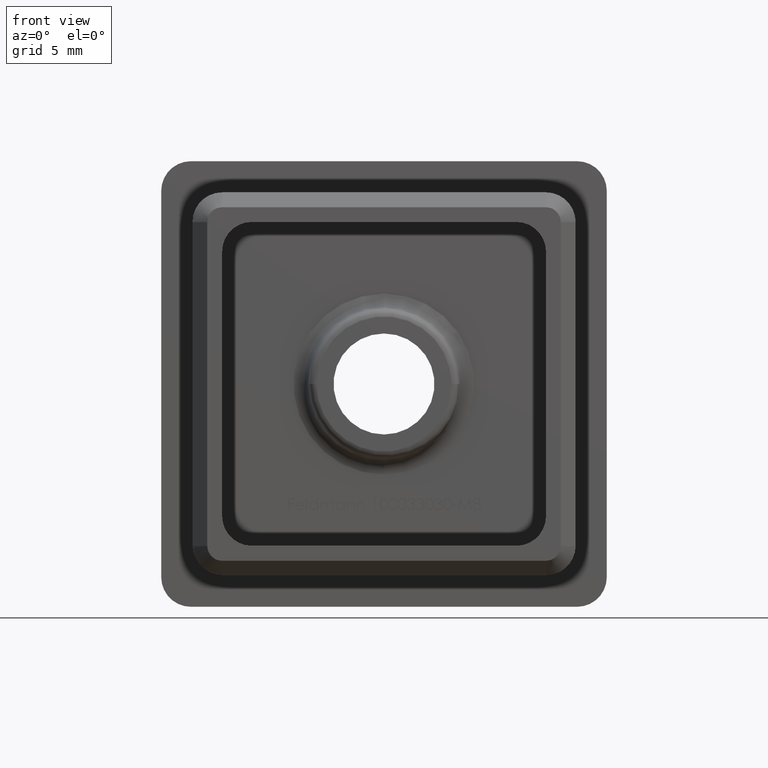
[diagram: clean part render]
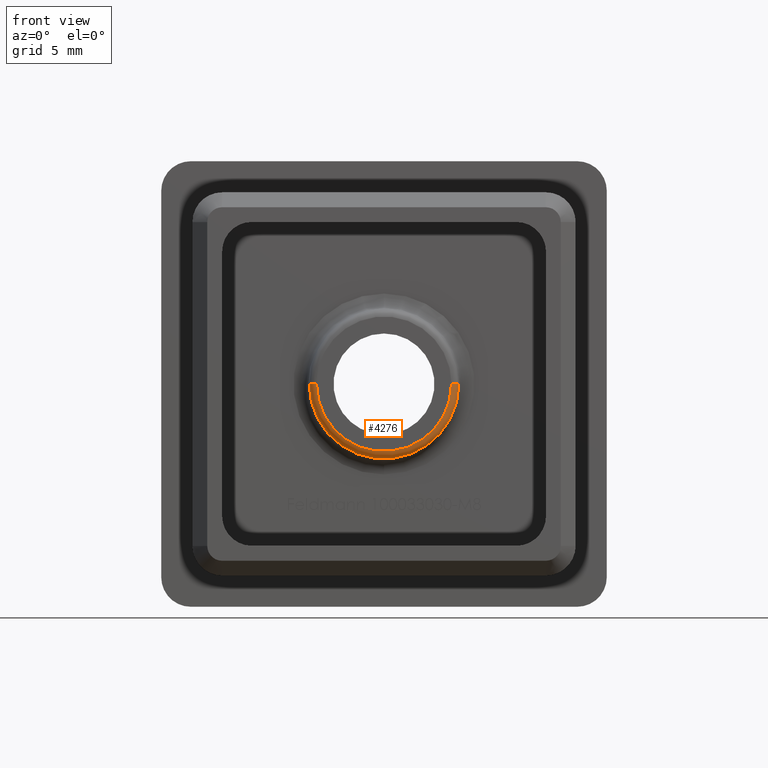
[diagram: same view with one face highlighted and labeled with its STEP entity id]
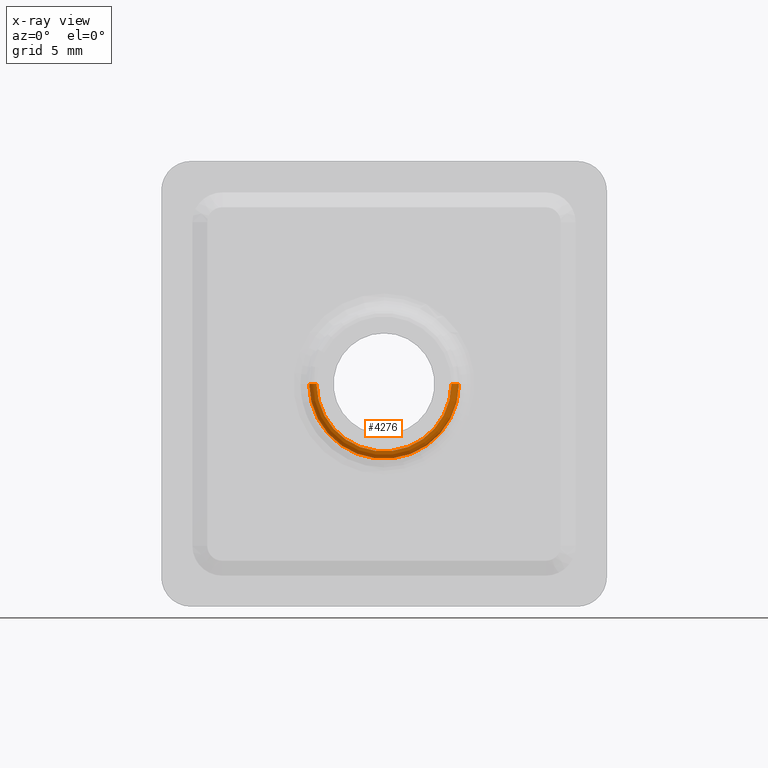
[diagram: x-ray of the same camera — body ghosted, the highlighted face saturated]
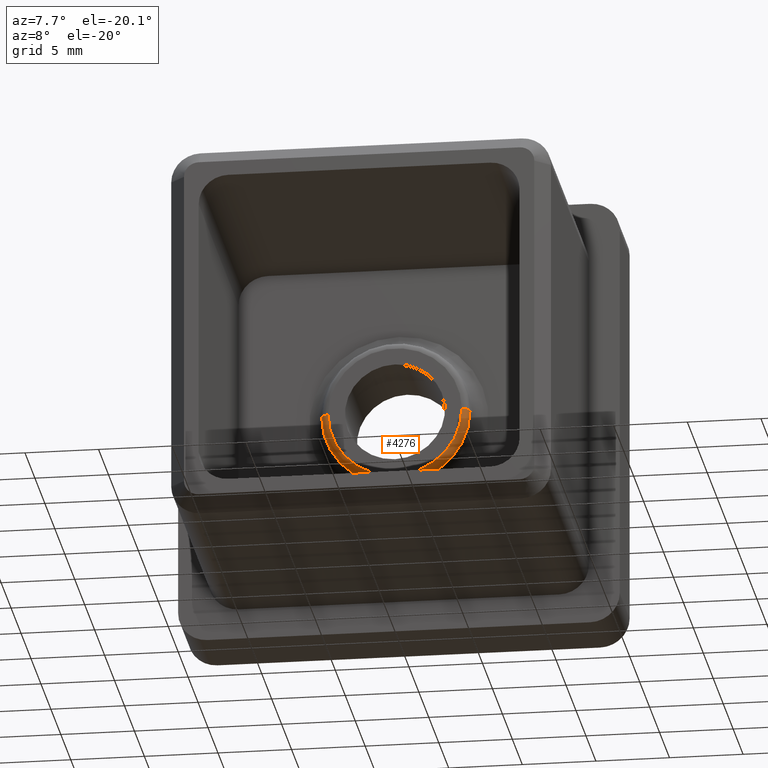
[diagram: same view with one face highlighted and labeled with its STEP entity id]
A machine part, front view. The second image highlights one B-rep face of the part: STEP entity #4276.
The next image is the same camera in x-ray: the body ghosted, the highlighted face saturated — about 0% of this face is hidden behind the body in this view.
A second angle (auxiliary view) of the same face is appended — the face is thin or edge-on in the first view.
In plain terms, the highlighted toroidal blend (fillet) surface has major radius 4.5418 mm and minor (blend) radius 0.5 mm.
Its self-contained STEP definition (entity closure, byte-faithful):
#95 = CARTESIAN_POINT ( 'NONE',  ( 4.541834412991284400, -2.000000000000000000, 5.867139638213479300E-016 ) ) ;
#1901 = AXIS2_PLACEMENT_3D ( 'NONE', #11966, #14946, #14818 ) ;
#2401 = ORIENTED_EDGE ( 'NONE', *, *, #16470, .F. ) ;
#2441 = CARTESIAN_POINT ( 'NONE',  ( 5.039931762037158000, -1.543577871373824000, 6.205925555203900700E-016 ) ) ;
#2449 = AXIS2_PLACEMENT_3D ( 'NONE', #16723, #9609, #6712 ) ;
#2656 = CARTESIAN_POINT ( 'NONE',  ( -4.541834412991284400, -2.000000000000000900, 0.0000000000000000000 ) ) ;
#2994 = DIRECTION ( 'NONE',  ( -1.000000000000000000, 0.0000000000000000000, 0.0000000000000000000 ) ) ;
#3300 = DIRECTION ( 'NONE',  ( -1.224646799147353500E-016, 1.000000000000000000, -0.0000000000000000000 ) ) ;
#3366 = DIRECTION ( 'NONE',  ( 1.000000000000000000, 1.290734347618150500E-016, 0.0000000000000000000 ) ) ;
#4201 = DIRECTION ( 'NONE',  ( -1.224646799147353500E-016, 1.000000000000000000, -0.0000000000000000000 ) ) ;
#4276 = ADVANCED_FACE ( 'NONE', ( #12718 ), #12287, .T. ) ;
#4571 = CARTESIAN_POINT ( 'NONE',  ( -5.039931762037158000, -1.543577871373825300, 0.0000000000000000000 ) ) ;
#5501 = EDGE_LOOP ( 'NONE', ( #6152, #16577, #16377, #2401 ) ) ;
#6152 = ORIENTED_EDGE ( 'NONE', *, *, #17541, .F. ) ;
#6671 = VERTEX_POINT ( 'NONE', #95 ) ;
#6712 = DIRECTION ( 'NONE',  ( -1.000000000000000000, -9.548583888345160900E-017, 0.0000000000000000000 ) ) ;
#7660 = EDGE_CURVE ( 'NONE', #10669, #7877, #14796, .T. ) ;
#7877 = VERTEX_POINT ( 'NONE', #4571 ) ;
#8774 = VERTEX_POINT ( 'NONE', #2441 ) ;
#9609 = DIRECTION ( 'NONE',  ( 1.224646799147353500E-016, -1.000000000000000000, 0.0000000000000000000 ) ) ;
#9774 = EDGE_CURVE ( 'NONE', #10669, #6671, #17197, .T. ) ;
#9802 = AXIS2_PLACEMENT_3D ( 'NONE', #16087, #3300, #3366 ) ;
#10002 = CARTESIAN_POINT ( 'NONE',  ( 1.836970198721030400E-016, -1.500000000000000400, 0.0000000000000000000 ) ) ;
#10499 = AXIS2_PLACEMENT_3D ( 'NONE', #10002, #4201, #18489 ) ;
#10669 = VERTEX_POINT ( 'NONE', #2656 ) ;
#11966 = CARTESIAN_POINT ( 'NONE',  ( 4.541834412991284400, -1.499999999999999800, 5.562142976127074500E-016 ) ) ;
#12287 = TOROIDAL_SURFACE ( 'NONE', #10499, 4.541834412991284400, 0.5000000000000000000 ) ;
#12718 = FACE_OUTER_BOUND ( 'NONE', #5501, .T. ) ;
#12810 = CIRCLE ( 'NONE', #1901, 0.4999999999999995600 ) ;
#12947 = CARTESIAN_POINT ( 'NONE',  ( -4.541834412991284400, -1.500000000000001100, 0.0000000000000000000 ) ) ;
#14796 = CIRCLE ( 'NONE', #16049, 0.4999999999999995600 ) ;
#14818 = DIRECTION ( 'NONE',  ( 1.000000000000000000, 0.0000000000000000000, 1.224646799147353500E-016 ) ) ;
#14946 = DIRECTION ( 'NONE',  ( -1.224646799147353200E-016, -1.499759782661857900E-032, 1.000000000000000000 ) ) ;
#15848 = DIRECTION ( 'NONE',  ( 0.0000000000000000000, -0.0000000000000000000, -1.000000000000000000 ) ) ;
#16049 = AXIS2_PLACEMENT_3D ( 'NONE', #12947, #15848, #2994 ) ;
#16087 = CARTESIAN_POINT ( 'NONE',  ( 1.890337699412631400E-016, -1.543577871373824600, 0.0000000000000000000 ) ) ;
#16377 = ORIENTED_EDGE ( 'NONE', *, *, #7660, .T. ) ;
#16470 = EDGE_CURVE ( 'NONE', #8774, #7877, #18153, .T. ) ;
#16577 = ORIENTED_EDGE ( 'NONE', *, *, #9774, .F. ) ;
#16723 = CARTESIAN_POINT ( 'NONE',  ( 2.449293598294706900E-016, -2.000000000000000400, 0.0000000000000000000 ) ) ;
#17197 = CIRCLE ( 'NONE', #2449, 4.541834412991284400 ) ;
#17541 = EDGE_CURVE ( 'NONE', #6671, #8774, #12810, .T. ) ;
#18153 = CIRCLE ( 'NONE', #9802, 5.039931762037158000 ) ;
#18489 = DIRECTION ( 'NONE',  ( -1.000000000000000000, -1.224646799147353500E-016, 0.0000000000000000000 ) ) ;